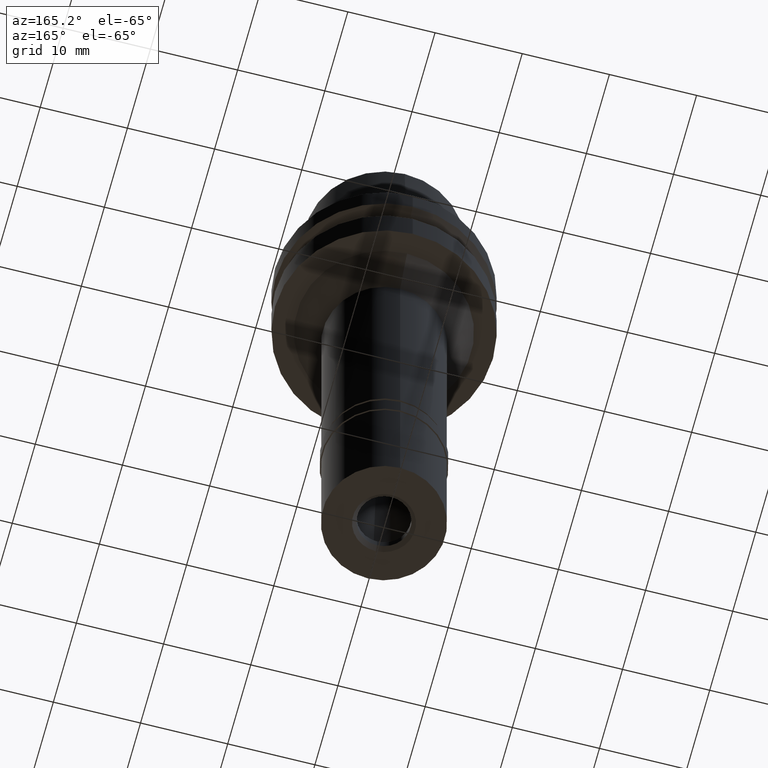
[diagram: clean part render]
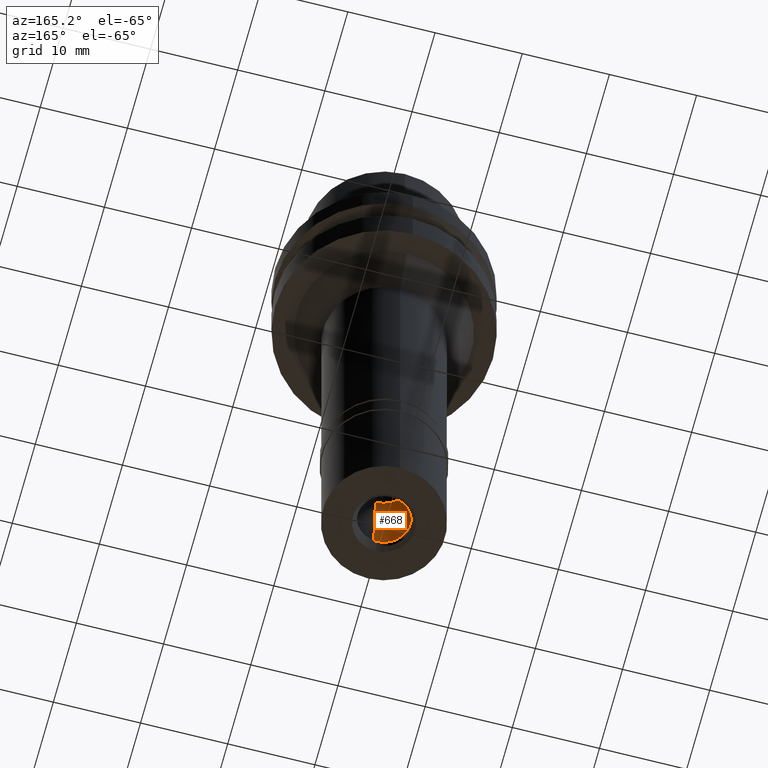
[diagram: same view with one face highlighted and labeled with its STEP entity id]
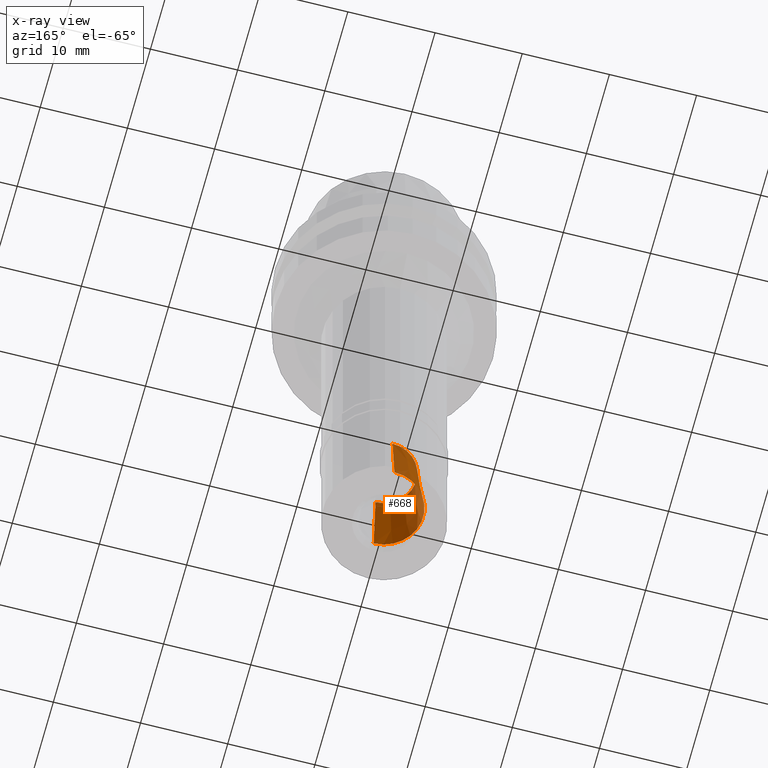
[diagram: x-ray of the same camera — body ghosted, the highlighted face saturated]
A machine part, auxiliary view. The second image highlights one B-rep face of the part: STEP entity #668.
The next image is the same camera in x-ray: the body ghosted, the highlighted face saturated — about 12% of this face is hidden behind the body in this view.
In plain terms, the highlighted conical surface has half-angle 5 deg.
Its self-contained STEP definition (entity closure, byte-faithful):
#62 = DIRECTION ( 'NONE',  ( 0.0000000000000000000, 0.0000000000000000000, -1.000000000000000000 ) ) ;
#76 = DIRECTION ( 'NONE',  ( 0.0000000000000000000, -1.000000000000000000, 0.0000000000000000000 ) ) ;
#105 = CONICAL_SURFACE ( 'NONE', #2512, 4.100000000000000533, 0.08726646259969973729 ) ;
#178 = LINE ( 'NONE', #595, #1459 ) ;
#370 = VERTEX_POINT ( 'NONE', #1467 ) ;
#503 = FACE_OUTER_BOUND ( 'NONE', #2655, .T. ) ;
#560 = EDGE_CURVE ( 'NONE', #868, #370, #2070, .T. ) ;
#562 = EDGE_CURVE ( 'NONE', #997, #1703, #178, .T. ) ;
#590 = VECTOR ( 'NONE', #653, 1000.000000000000000 ) ;
#595 = CARTESIAN_POINT ( 'NONE',  ( 0.0000000000000000000, 4.500000000000000000, -56.00000000000000000 ) ) ;
#653 = DIRECTION ( 'NONE',  ( 0.0000000000000000000, 0.08715574274765398866, 0.9961946980917458783 ) ) ;
#659 = ORIENTED_EDGE ( 'NONE', *, *, #562, .T. ) ;
#668 = ADVANCED_FACE ( 'NONE', ( #503 ), #105, .F. ) ;
#775 = CARTESIAN_POINT ( 'NONE',  ( 0.0000000000000000000, 4.500000000000000000, -56.00000000000000000 ) ) ;
#868 = VERTEX_POINT ( 'NONE', #1009 ) ;
#885 = ORIENTED_EDGE ( 'NONE', *, *, #560, .F. ) ;
#916 = CARTESIAN_POINT ( 'NONE',  ( 0.0000000000000000000, 0.0000000000000000000, -46.85595815778999906 ) ) ;
#942 = AXIS2_PLACEMENT_3D ( 'NONE', #2107, #2529, #2316 ) ;
#997 = VERTEX_POINT ( 'NONE', #775 ) ;
#1009 = CARTESIAN_POINT ( 'NONE',  ( 0.0000000000000000000, -4.500000000000000000, -56.00000000000000000 ) ) ;
#1199 = ORIENTED_EDGE ( 'NONE', *, *, #1863, .F. ) ;
#1236 = CARTESIAN_POINT ( 'NONE',  ( 0.0000000000000000000, -4.500000000000000000, -56.00000000000000000 ) ) ;
#1302 = CARTESIAN_POINT ( 'NONE',  ( 0.0000000000000000000, 0.0000000000000000000, -51.42797907889999465 ) ) ;
#1435 = CARTESIAN_POINT ( 'NONE',  ( 0.0000000000000000000, 3.700000000000000178, -46.85595815778999906 ) ) ;
#1459 = VECTOR ( 'NONE', #1474, 1000.000000000000000 ) ;
#1467 = CARTESIAN_POINT ( 'NONE',  ( 0.0000000000000000000, -3.700000000000000178, -46.85595815778999906 ) ) ;
#1474 = DIRECTION ( 'NONE',  ( 0.0000000000000000000, -0.08715574274765398866, 0.9961946980917458783 ) ) ;
#1703 = VERTEX_POINT ( 'NONE', #1435 ) ;
#1863 = EDGE_CURVE ( 'NONE', #370, #1703, #2293, .T. ) ;
#1900 = AXIS2_PLACEMENT_3D ( 'NONE', #916, #2340, #2354 ) ;
#2070 = LINE ( 'NONE', #1236, #590 ) ;
#2107 = CARTESIAN_POINT ( 'NONE',  ( 0.0000000000000000000, 0.0000000000000000000, -56.00000000000000000 ) ) ;
#2118 = CIRCLE ( 'NONE', #942, 4.500000000000000000 ) ;
#2165 = EDGE_CURVE ( 'NONE', #868, #997, #2118, .T. ) ;
#2293 = CIRCLE ( 'NONE', #1900, 3.700000000000000178 ) ;
#2316 = DIRECTION ( 'NONE',  ( 0.0000000000000000000, -1.000000000000000000, 0.0000000000000000000 ) ) ;
#2340 = DIRECTION ( 'NONE',  ( 0.0000000000000000000, 0.0000000000000000000, -1.000000000000000000 ) ) ;
#2354 = DIRECTION ( 'NONE',  ( 0.0000000000000000000, -1.000000000000000000, 0.0000000000000000000 ) ) ;
#2512 = AXIS2_PLACEMENT_3D ( 'NONE', #1302, #62, #76 ) ;
#2529 = DIRECTION ( 'NONE',  ( 0.0000000000000000000, 0.0000000000000000000, -1.000000000000000000 ) ) ;
#2548 = ORIENTED_EDGE ( 'NONE', *, *, #2165, .T. ) ;
#2655 = EDGE_LOOP ( 'NONE', ( #1199, #885, #2548, #659 ) ) ;